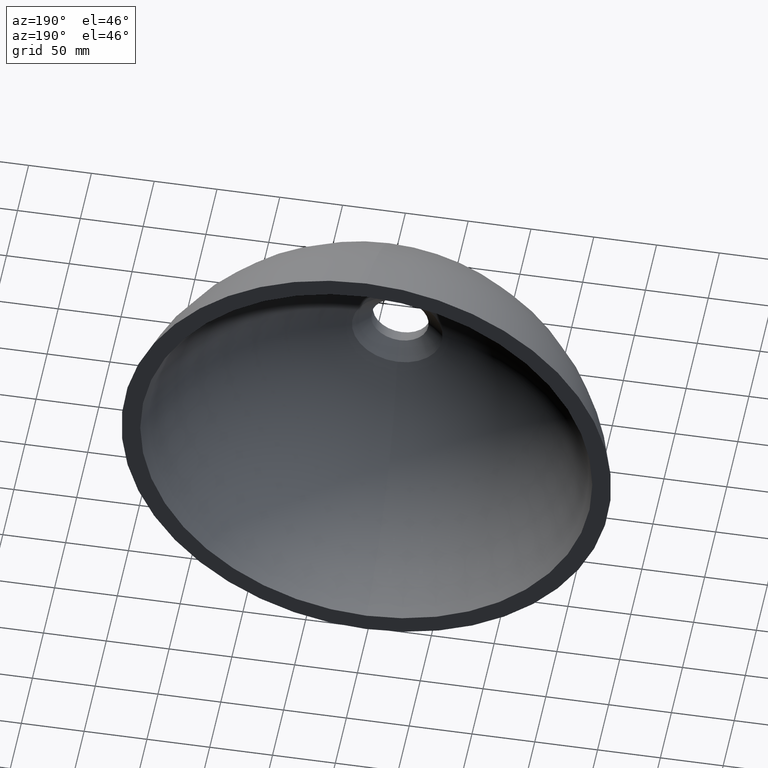
[diagram: clean part render]
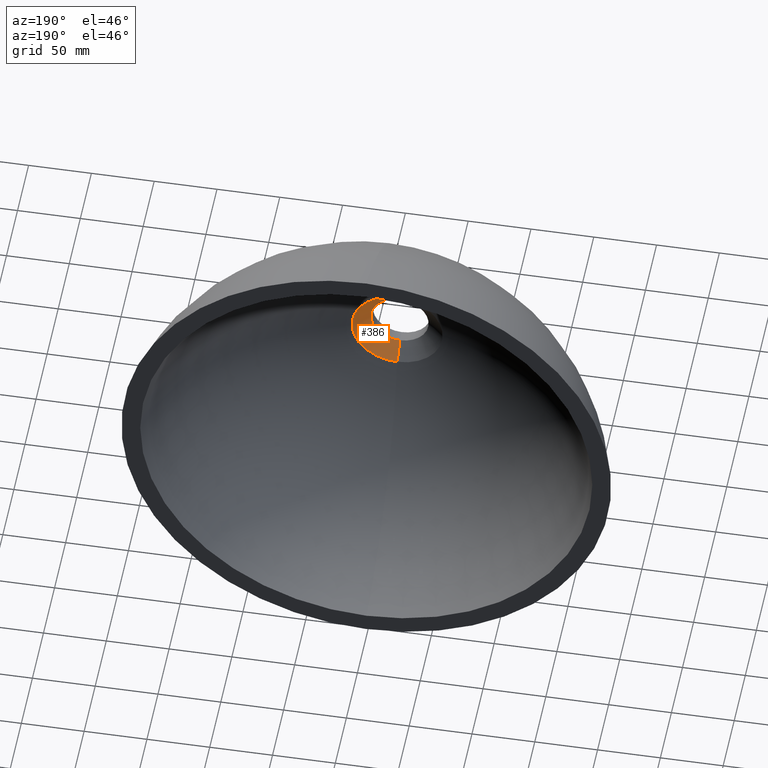
[diagram: same view with one face highlighted and labeled with its STEP entity id]
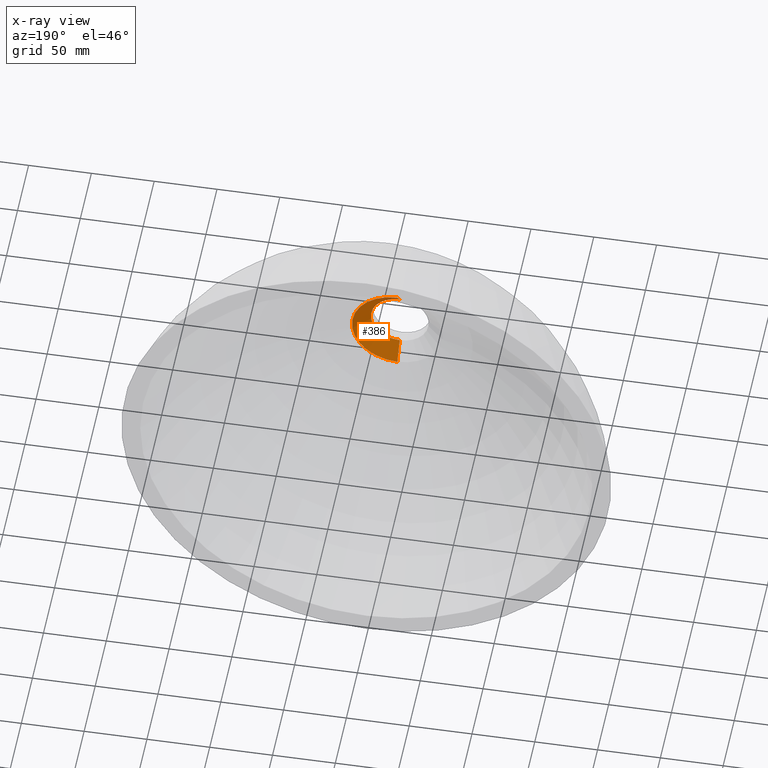
[diagram: x-ray of the same camera — body ghosted, the highlighted face saturated]
A machine part, auxiliary view. The second image highlights one B-rep face of the part: STEP entity #386.
The next image is the same camera in x-ray: the body ghosted, the highlighted face saturated — about 3% of this face is hidden behind the body in this view.
In plain terms, the highlighted conical surface has half-angle 50 deg.
Its self-contained STEP definition (entity closure, byte-faithful):
#21 = CONICAL_SURFACE ( 'NONE', #235, 23.00000000000000000, 0.8726646259971667700 ) ;
#30 = DIRECTION ( 'NONE',  ( 0.0000000000000000000, 0.0000000000000000000, -1.000000000000000000 ) ) ;
#45 = CARTESIAN_POINT ( 'NONE',  ( 0.0000000000000000000, 9.000000000000001800, 0.0000000000000000000 ) ) ;
#51 = EDGE_CURVE ( 'NONE', #239, #83, #263, .T. ) ;
#53 = DIRECTION ( 'NONE',  ( 0.0000000000000000000, 1.000000000000000000, 0.0000000000000000000 ) ) ;
#63 = VECTOR ( 'NONE', #215, 1000.000000000000000 ) ;
#71 = EDGE_CURVE ( 'NONE', #82, #375, #184, .T. ) ;
#76 = ORIENTED_EDGE ( 'NONE', *, *, #396, .F. ) ;
#82 = VERTEX_POINT ( 'NONE', #417 ) ;
#83 = VERTEX_POINT ( 'NONE', #151 ) ;
#132 = CARTESIAN_POINT ( 'NONE',  ( 0.0000000000000000000, 20.00000000000000000, 0.0000000000000000000 ) ) ;
#151 = CARTESIAN_POINT ( 'NONE',  ( 1.323287748374420900E-014, 20.00000000000000000, 36.10928951853636400 ) ) ;
#184 = CIRCLE ( 'NONE', #423, 23.00000000000000000 ) ;
#204 = LINE ( 'NONE', #302, #292 ) ;
#215 = DIRECTION ( 'NONE',  ( 9.381338752702746800E-017, 0.6427876096865378100, -0.7660444431189793500 ) ) ;
#234 = DIRECTION ( 'NONE',  ( -0.0000000000000000000, -1.000000000000000000, -0.0000000000000000000 ) ) ;
#235 = AXIS2_PLACEMENT_3D ( 'NONE', #45, #53, #434 ) ;
#239 = VERTEX_POINT ( 'NONE', #384 ) ;
#244 = DIRECTION ( 'NONE',  ( 0.0000000000000000000, 0.6427876096865378100, 0.7660444431189793500 ) ) ;
#263 = CIRCLE ( 'NONE', #290, 36.10928951853636400 ) ;
#279 = LINE ( 'NONE', #430, #63 ) ;
#290 = AXIS2_PLACEMENT_3D ( 'NONE', #132, #234, #316 ) ;
#292 = VECTOR ( 'NONE', #244, 1000.000000000000000 ) ;
#302 = CARTESIAN_POINT ( 'NONE',  ( 0.0000000000000000000, 9.000000000000001800, 23.00000000000000000 ) ) ;
#304 = FACE_OUTER_BOUND ( 'NONE', #404, .T. ) ;
#316 = DIRECTION ( 'NONE',  ( 0.0000000000000000000, 0.0000000000000000000, -1.000000000000000000 ) ) ;
#328 = ORIENTED_EDGE ( 'NONE', *, *, #345, .T. ) ;
#345 = EDGE_CURVE ( 'NONE', #375, #83, #204, .T. ) ;
#354 = DIRECTION ( 'NONE',  ( -0.0000000000000000000, -1.000000000000000000, -0.0000000000000000000 ) ) ;
#375 = VERTEX_POINT ( 'NONE', #414 ) ;
#384 = CARTESIAN_POINT ( 'NONE',  ( 0.0000000000000000000, 20.00000000000000000, -36.10928951853636400 ) ) ;
#386 = ADVANCED_FACE ( 'NONE', ( #304 ), #21, .F. ) ;
#388 = CARTESIAN_POINT ( 'NONE',  ( 0.0000000000000000000, 9.000000000000001800, 0.0000000000000000000 ) ) ;
#396 = EDGE_CURVE ( 'NONE', #82, #239, #279, .T. ) ;
#404 = EDGE_LOOP ( 'NONE', ( #76, #420, #328, #431 ) ) ;
#414 = CARTESIAN_POINT ( 'NONE',  ( 2.816687638038912400E-015, 9.000000000000001800, 23.00000000000000000 ) ) ;
#417 = CARTESIAN_POINT ( 'NONE',  ( 0.0000000000000000000, 9.000000000000001800, -23.00000000000000000 ) ) ;
#420 = ORIENTED_EDGE ( 'NONE', *, *, #71, .T. ) ;
#423 = AXIS2_PLACEMENT_3D ( 'NONE', #388, #354, #30 ) ;
#430 = CARTESIAN_POINT ( 'NONE',  ( 2.816687638038912400E-015, 9.000000000000001800, -23.00000000000000000 ) ) ;
#431 = ORIENTED_EDGE ( 'NONE', *, *, #51, .F. ) ;
#434 = DIRECTION ( 'NONE',  ( 0.0000000000000000000, 0.0000000000000000000, 1.000000000000000000 ) ) ;